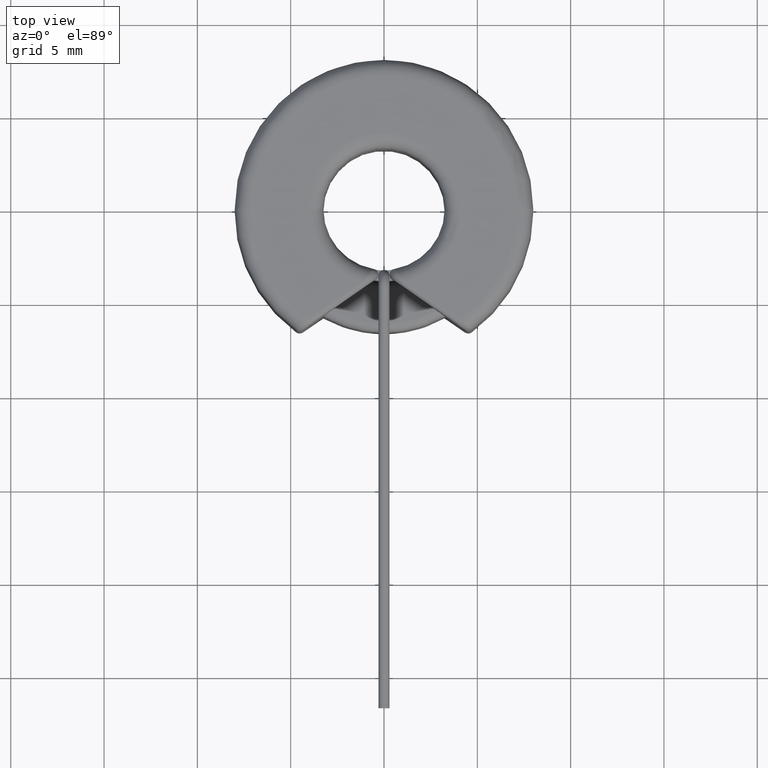
[diagram: clean part render]
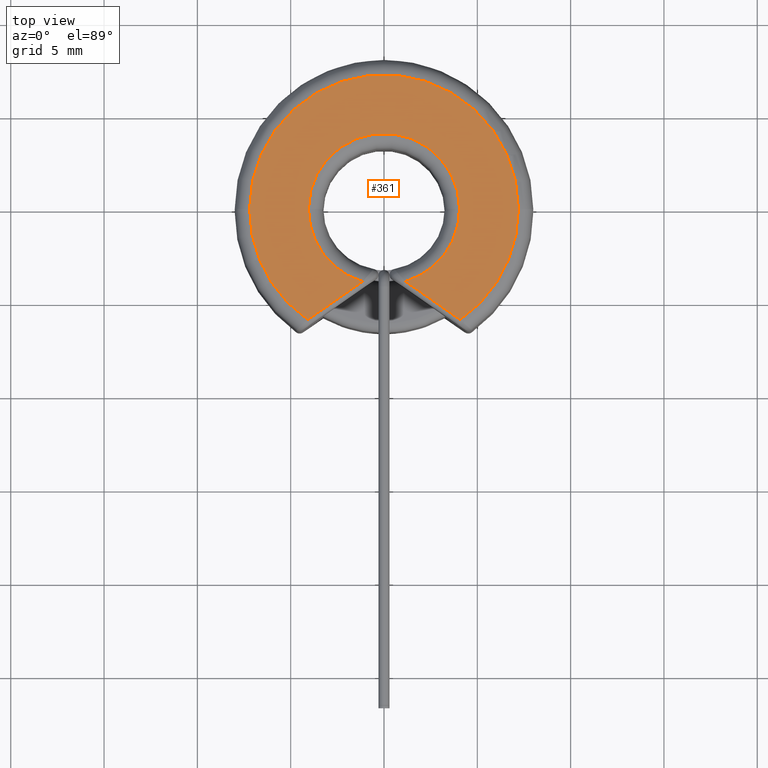
[diagram: same view with one face highlighted and labeled with its STEP entity id]
A machine part, top view. The second image highlights one B-rep face of the part: STEP entity #361.
In plain terms, the highlighted planar face has unit normal (0, 0, 1).
Its self-contained STEP definition (entity closure, byte-faithful):
#172 = AXIS2_PLACEMENT_3D ( 'NONE', #3671, #4005, #1160 ) ;
#182 = EDGE_CURVE ( 'NONE', #2542, #4078, #1149, .T. ) ;
#254 = ORIENTED_EDGE ( 'NONE', *, *, #182, .T. ) ;
#270 = DIRECTION ( 'NONE',  ( 1.000000000000000000, 0.0000000000000000000, 0.0000000000000000000 ) ) ;
#274 = VECTOR ( 'NONE', #1470, 1000.000000000000114 ) ;
#313 = VERTEX_POINT ( 'NONE', #1186 ) ;
#343 = EDGE_CURVE ( 'NONE', #3983, #682, #1847, .T. ) ;
#361 = ADVANCED_FACE ( 'NONE', ( #4180 ), #644, .T. ) ;
#405 = ORIENTED_EDGE ( 'NONE', *, *, #792, .T. ) ;
#420 = ORIENTED_EDGE ( 'NONE', *, *, #1741, .T. ) ;
#497 = CARTESIAN_POINT ( 'NONE',  ( 0.0000000000000000000, 0.0000000000000000000, 4.500000000000000000 ) ) ;
#513 = DIRECTION ( 'NONE',  ( 1.000000000000000000, 0.0000000000000000000, 0.0000000000000000000 ) ) ;
#608 = AXIS2_PLACEMENT_3D ( 'NONE', #497, #2459, #513 ) ;
#644 = PLANE ( 'NONE',  #1120 ) ;
#673 = VERTEX_POINT ( 'NONE', #3373 ) ;
#682 = VERTEX_POINT ( 'NONE', #3050 ) ;
#690 = VECTOR ( 'NONE', #3424, 1000.000000000000114 ) ;
#792 = EDGE_CURVE ( 'NONE', #682, #2542, #1579, .T. ) ;
#861 = EDGE_LOOP ( 'NONE', ( #2666, #1835, #405, #254, #4134, #3563, #2862, #420 ) ) ;
#864 = DIRECTION ( 'NONE',  ( 1.000000000000000000, 0.0000000000000000000, -0.0000000000000000000 ) ) ;
#897 = LINE ( 'NONE', #1483, #690 ) ;
#978 = AXIS2_PLACEMENT_3D ( 'NONE', #3967, #1679, #2929 ) ;
#1120 = AXIS2_PLACEMENT_3D ( 'NONE', #4213, #2808, #864 ) ;
#1149 = LINE ( 'NONE', #2133, #274 ) ;
#1160 = DIRECTION ( 'NONE',  ( 1.000000000000000000, 0.0000000000000000000, 0.0000000000000000000 ) ) ;
#1186 = CARTESIAN_POINT ( 'NONE',  ( -7.200000000000000178, 9.307315673519885459E-16, 4.500000000000000000 ) ) ;
#1305 = CARTESIAN_POINT ( 'NONE',  ( 7.200000000000000178, 0.0000000000000000000, 4.500000000000000000 ) ) ;
#1326 = CARTESIAN_POINT ( 'NONE',  ( -1.150699578112081900, -3.883090326136218184, 4.500000000000000000 ) ) ;
#1341 = VERTEX_POINT ( 'NONE', #1326 ) ;
#1343 = CIRCLE ( 'NONE', #2488, 7.200000000000000178 ) ;
#1470 = DIRECTION ( 'NONE',  ( 0.8201598623743622252, -0.5721344248951178990, -0.0000000000000000000 ) ) ;
#1483 = CARTESIAN_POINT ( 'NONE',  ( -0.9335835439523703094, -3.731632588397309380, 4.500000000000000000 ) ) ;
#1579 = CIRCLE ( 'NONE', #2677, 4.050000000000000711 ) ;
#1580 = CARTESIAN_POINT ( 'NONE',  ( 1.150699578112083454, -3.883090326136217740, 4.500000000000000000 ) ) ;
#1583 = DIRECTION ( 'NONE',  ( 1.000000000000000000, 0.0000000000000000000, 0.0000000000000000000 ) ) ;
#1679 = DIRECTION ( 'NONE',  ( 0.0000000000000000000, 0.0000000000000000000, 1.000000000000000000 ) ) ;
#1741 = EDGE_CURVE ( 'NONE', #673, #1341, #897, .T. ) ;
#1805 = CIRCLE ( 'NONE', #978, 7.200000000000000178 ) ;
#1835 = ORIENTED_EDGE ( 'NONE', *, *, #343, .T. ) ;
#1847 = CIRCLE ( 'NONE', #2004, 4.050000000000000711 ) ;
#1892 = DIRECTION ( 'NONE',  ( 0.0000000000000000000, 0.0000000000000000000, 1.000000000000000000 ) ) ;
#2004 = AXIS2_PLACEMENT_3D ( 'NONE', #3789, #3440, #2904 ) ;
#2133 = CARTESIAN_POINT ( 'NONE',  ( 3.985694068420964076, -5.860751044130897647, 4.500000000000000000 ) ) ;
#2215 = EDGE_CURVE ( 'NONE', #313, #673, #1805, .T. ) ;
#2392 = CIRCLE ( 'NONE', #172, 7.200000000000000178 ) ;
#2459 = DIRECTION ( 'NONE',  ( -0.0000000000000000000, -0.0000000000000000000, -1.000000000000000000 ) ) ;
#2478 = EDGE_CURVE ( 'NONE', #4078, #2918, #1343, .T. ) ;
#2488 = AXIS2_PLACEMENT_3D ( 'NONE', #3823, #1892, #270 ) ;
#2538 = CARTESIAN_POINT ( 'NONE',  ( -4.050000000000000711, 4.959819536546780600E-16, 4.500000000000000000 ) ) ;
#2541 = DIRECTION ( 'NONE',  ( -0.0000000000000000000, -0.0000000000000000000, -1.000000000000000000 ) ) ;
#2542 = VERTEX_POINT ( 'NONE', #1580 ) ;
#2666 = ORIENTED_EDGE ( 'NONE', *, *, #3109, .T. ) ;
#2677 = AXIS2_PLACEMENT_3D ( 'NONE', #3152, #2541, #1583 ) ;
#2808 = DIRECTION ( 'NONE',  ( 0.0000000000000000000, 0.0000000000000000000, 1.000000000000000000 ) ) ;
#2862 = ORIENTED_EDGE ( 'NONE', *, *, #2215, .T. ) ;
#2904 = DIRECTION ( 'NONE',  ( 1.000000000000000000, 0.0000000000000000000, 0.0000000000000000000 ) ) ;
#2918 = VERTEX_POINT ( 'NONE', #1305 ) ;
#2929 = DIRECTION ( 'NONE',  ( 1.000000000000000000, 0.0000000000000000000, 0.0000000000000000000 ) ) ;
#3050 = CARTESIAN_POINT ( 'NONE',  ( 4.050000000000000711, 0.0000000000000000000, 4.500000000000000000 ) ) ;
#3109 = EDGE_CURVE ( 'NONE', #1341, #3983, #4126, .T. ) ;
#3152 = CARTESIAN_POINT ( 'NONE',  ( 0.0000000000000000000, 0.0000000000000000000, 4.500000000000000000 ) ) ;
#3270 = EDGE_CURVE ( 'NONE', #2918, #313, #2392, .T. ) ;
#3373 = CARTESIAN_POINT ( 'NONE',  ( -4.084243991975898602, -5.929498377941323284, 4.500000000000000000 ) ) ;
#3424 = DIRECTION ( 'NONE',  ( 0.8201598623743620031, 0.5721344248951181211, -0.0000000000000000000 ) ) ;
#3440 = DIRECTION ( 'NONE',  ( -0.0000000000000000000, -0.0000000000000000000, -1.000000000000000000 ) ) ;
#3563 = ORIENTED_EDGE ( 'NONE', *, *, #3270, .T. ) ;
#3598 = CARTESIAN_POINT ( 'NONE',  ( 4.084243991975901267, -5.929498377941322396, 4.500000000000000000 ) ) ;
#3671 = CARTESIAN_POINT ( 'NONE',  ( 0.0000000000000000000, 0.0000000000000000000, 4.500000000000000000 ) ) ;
#3789 = CARTESIAN_POINT ( 'NONE',  ( 0.0000000000000000000, 0.0000000000000000000, 4.500000000000000000 ) ) ;
#3823 = CARTESIAN_POINT ( 'NONE',  ( 0.0000000000000000000, 0.0000000000000000000, 4.500000000000000000 ) ) ;
#3967 = CARTESIAN_POINT ( 'NONE',  ( 0.0000000000000000000, 0.0000000000000000000, 4.500000000000000000 ) ) ;
#3983 = VERTEX_POINT ( 'NONE', #2538 ) ;
#4005 = DIRECTION ( 'NONE',  ( 0.0000000000000000000, 0.0000000000000000000, 1.000000000000000000 ) ) ;
#4078 = VERTEX_POINT ( 'NONE', #3598 ) ;
#4126 = CIRCLE ( 'NONE', #608, 4.050000000000000711 ) ;
#4134 = ORIENTED_EDGE ( 'NONE', *, *, #2478, .T. ) ;
#4180 = FACE_OUTER_BOUND ( 'NONE', #861, .T. ) ;
#4213 = CARTESIAN_POINT ( 'NONE',  ( 0.0000000000000000000, 0.0000000000000000000, 4.500000000000000000 ) ) ;